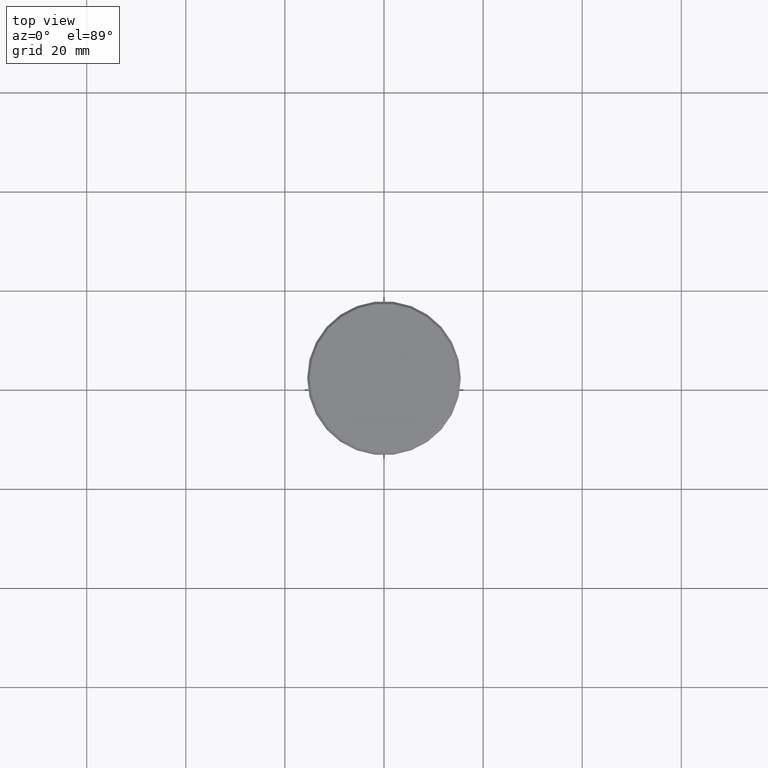
[diagram: clean part render]
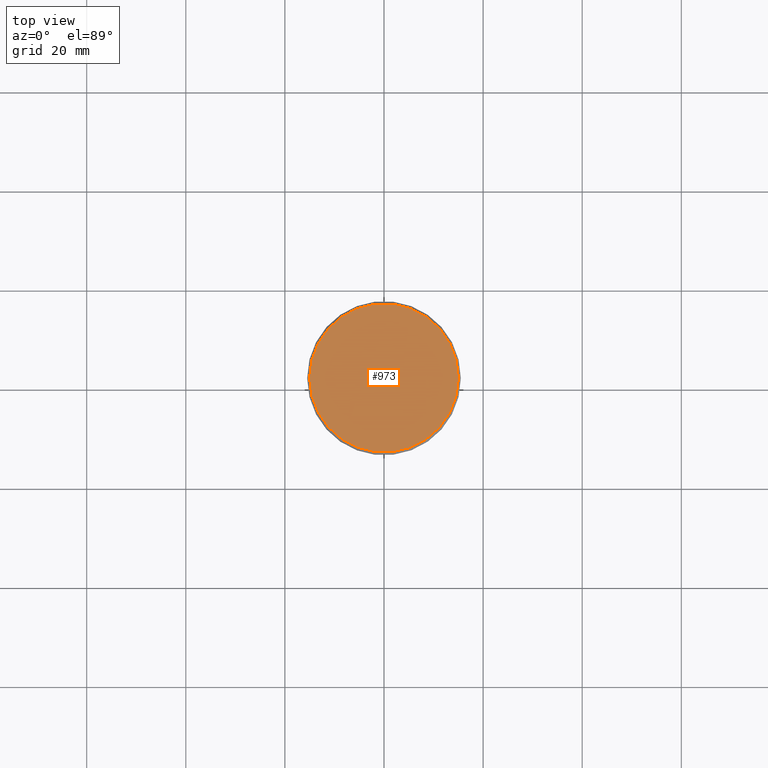
[diagram: same view with one face highlighted and labeled with its STEP entity id]
A machine part, top view. The second image highlights one B-rep face of the part: STEP entity #973.
In plain terms, the highlighted planar face has unit normal (0, -0, 1).
Its self-contained STEP definition (entity closure, byte-faithful):
#24 = CARTESIAN_POINT ( 'NONE',  ( 0.000000000000000000, 0.000000000000000000, 0.000000000000000000 ) ) ;
#75 = ORIENTED_EDGE ( 'NONE', *, *, #722, .T. ) ;
#252 = AXIS2_PLACEMENT_3D ( 'NONE', #24, #414, #762 ) ;
#269 = CIRCLE ( 'NONE', #1041, 14.99999999999998579 ) ;
#290 = EDGE_CURVE ( 'NONE', #1172, #651, #269, .T. ) ;
#309 = CARTESIAN_POINT ( 'NONE',  ( 0.000000000000000000, 0.000000000000000000, 0.000000000000000000 ) ) ;
#403 = CARTESIAN_POINT ( 'NONE',  ( 14.99999999999998579, 1.867586368699712587E-15, 0.000000000000000000 ) ) ;
#408 = CARTESIAN_POINT ( 'NONE',  ( 0.000000000000000000, 0.000000000000000000, 0.000000000000000000 ) ) ;
#409 = DIRECTION ( 'NONE',  ( -0.000000000000000000, -0.000000000000000000, 1.000000000000000000 ) ) ;
#414 = DIRECTION ( 'NONE',  ( -0.000000000000000000, -0.000000000000000000, 1.000000000000000000 ) ) ;
#437 = DIRECTION ( 'NONE',  ( 1.000000000000000000, 0.000000000000000000, 0.000000000000000000 ) ) ;
#481 = EDGE_LOOP ( 'NONE', ( #490, #75 ) ) ;
#490 = ORIENTED_EDGE ( 'NONE', *, *, #290, .T. ) ;
#579 = DIRECTION ( 'NONE',  ( 0.000000000000000000, -0.000000000000000000, 1.000000000000000000 ) ) ;
#651 = VERTEX_POINT ( 'NONE', #403 ) ;
#676 = DIRECTION ( 'NONE',  ( 1.000000000000000000, 0.000000000000000000, 0.000000000000000000 ) ) ;
#722 = EDGE_CURVE ( 'NONE', #651, #1172, #1022, .T. ) ;
#762 = DIRECTION ( 'NONE',  ( 1.000000000000000000, 0.000000000000000000, 0.000000000000000000 ) ) ;
#812 = AXIS2_PLACEMENT_3D ( 'NONE', #408, #579, #676 ) ;
#860 = FACE_OUTER_BOUND ( 'NONE', #481, .T. ) ;
#943 = PLANE ( 'NONE',  #812 ) ;
#973 = ADVANCED_FACE ( 'NONE', ( #860 ), #943, .T. ) ;
#1022 = CIRCLE ( 'NONE', #252, 14.99999999999998579 ) ;
#1041 = AXIS2_PLACEMENT_3D ( 'NONE', #309, #409, #437 ) ;
#1060 = CARTESIAN_POINT ( 'NONE',  ( -14.99999999999998579, 0.000000000000000000, 0.000000000000000000 ) ) ;
#1172 = VERTEX_POINT ( 'NONE', #1060 ) ;